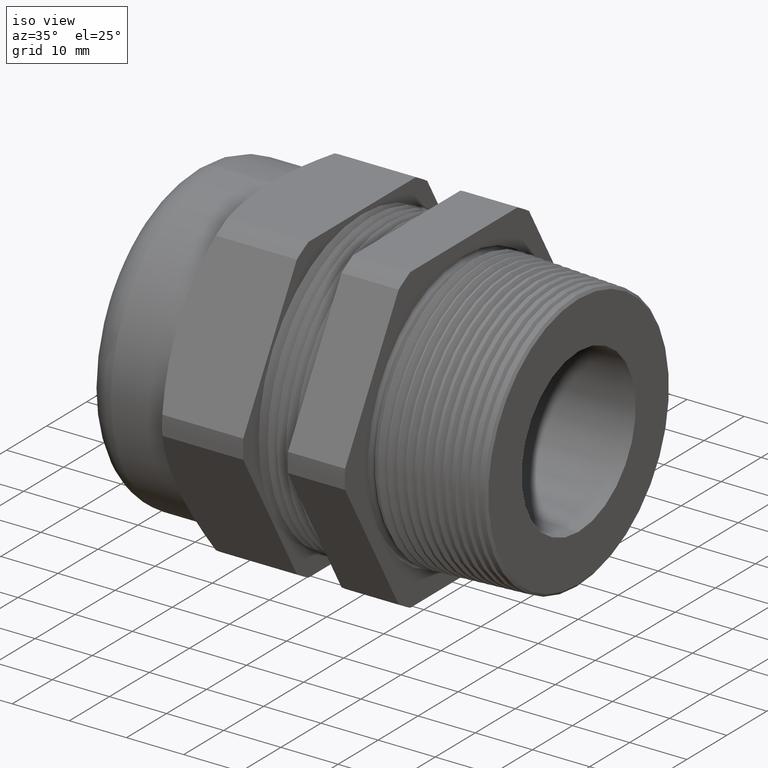
[diagram: clean part render]
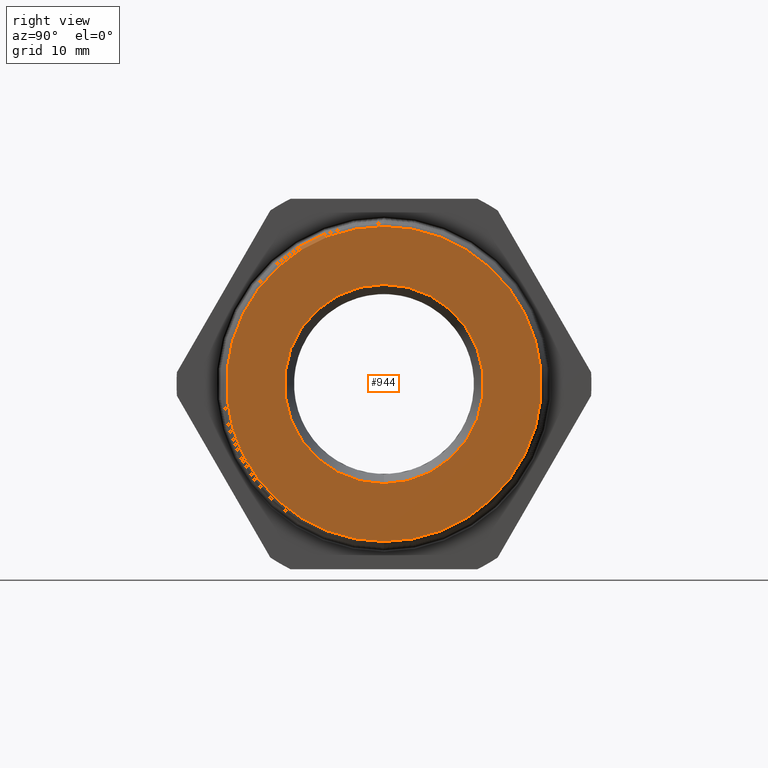
[diagram: tour spotlight — one face highlighted and labeled with its STEP entity id]
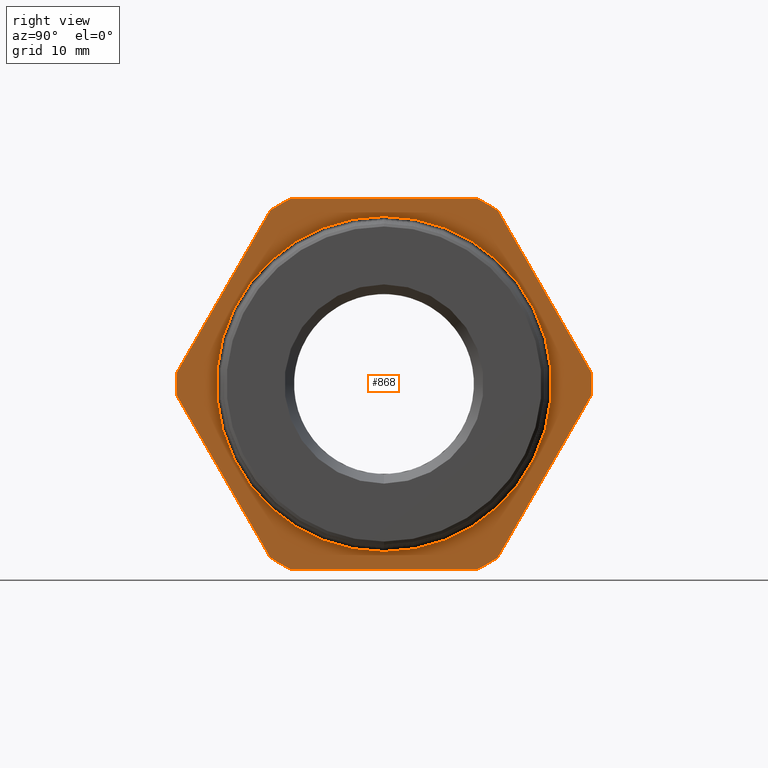
[diagram: tour spotlight — one face highlighted and labeled with its STEP entity id]
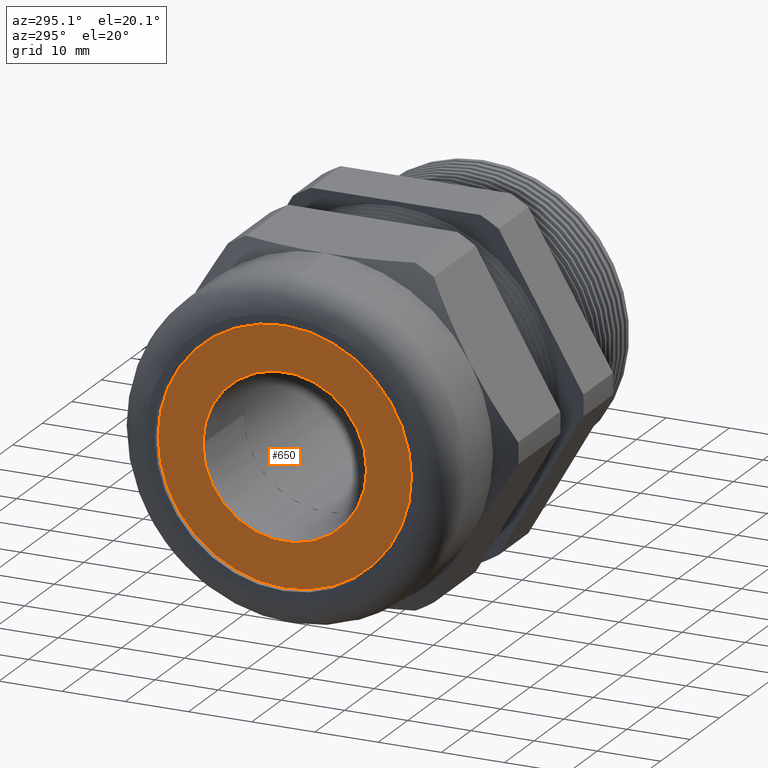
[diagram: tour spotlight — one face highlighted and labeled with its STEP entity id]
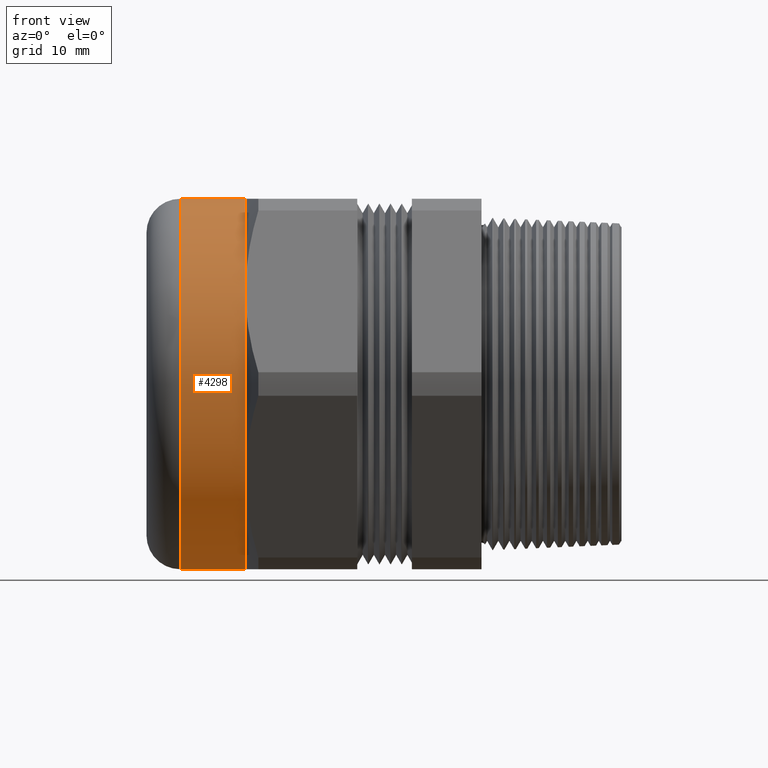
[diagram: tour spotlight — one face highlighted and labeled with its STEP entity id]
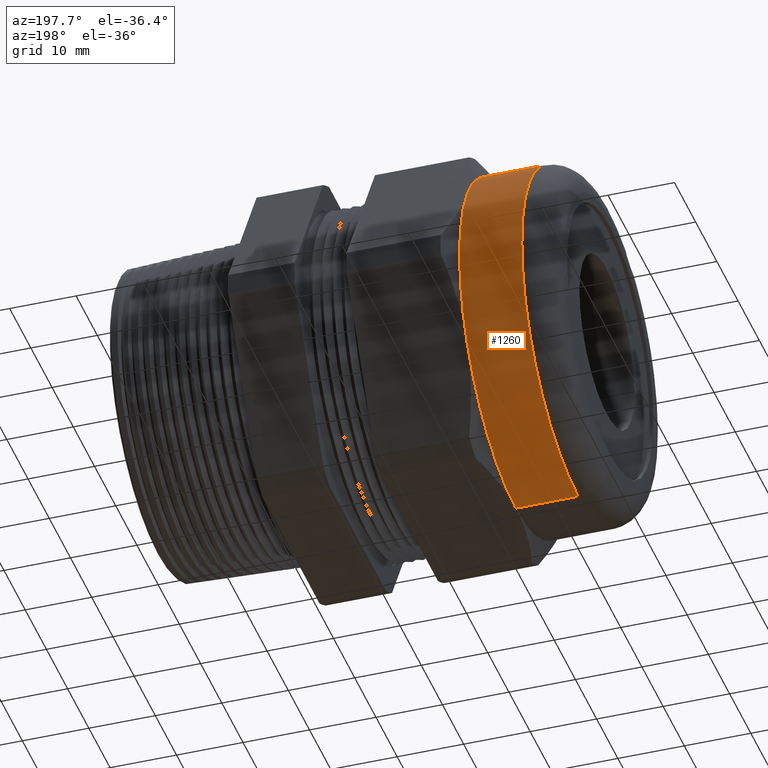
[diagram: tour spotlight — one face highlighted and labeled with its STEP entity id]
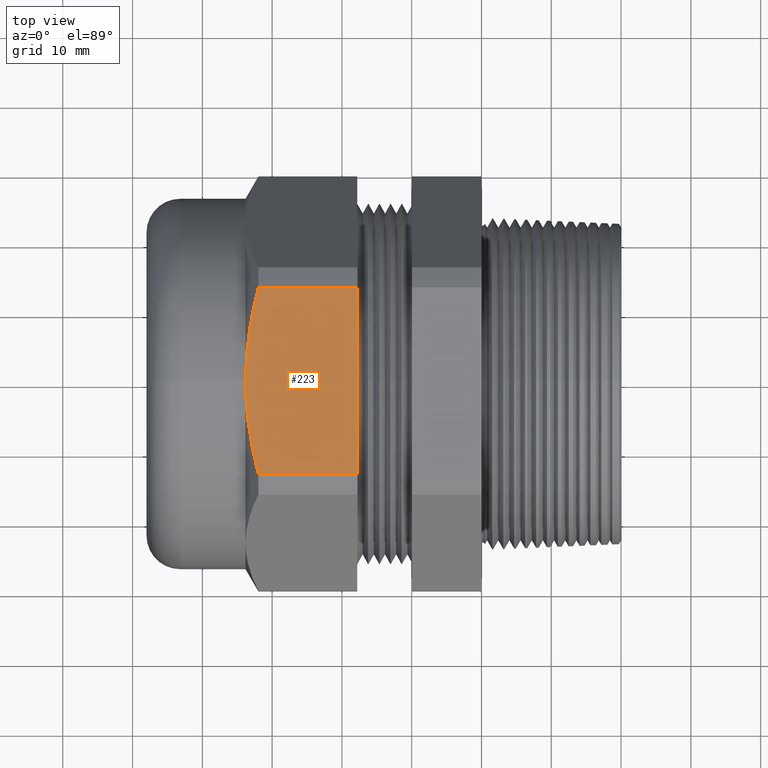
[diagram: tour spotlight — one face highlighted and labeled with its STEP entity id]
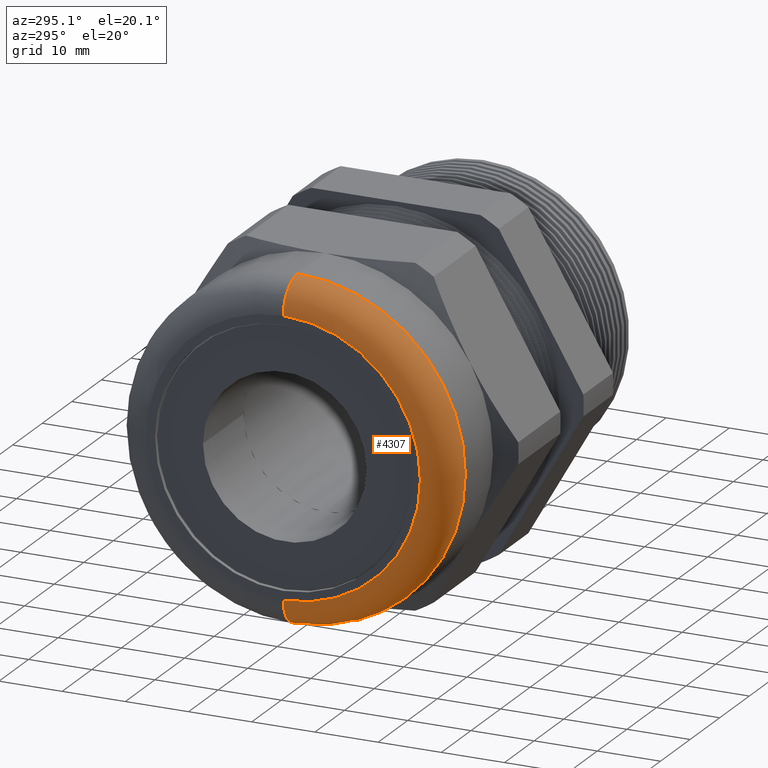
[diagram: tour spotlight — one face highlighted and labeled with its STEP entity id]
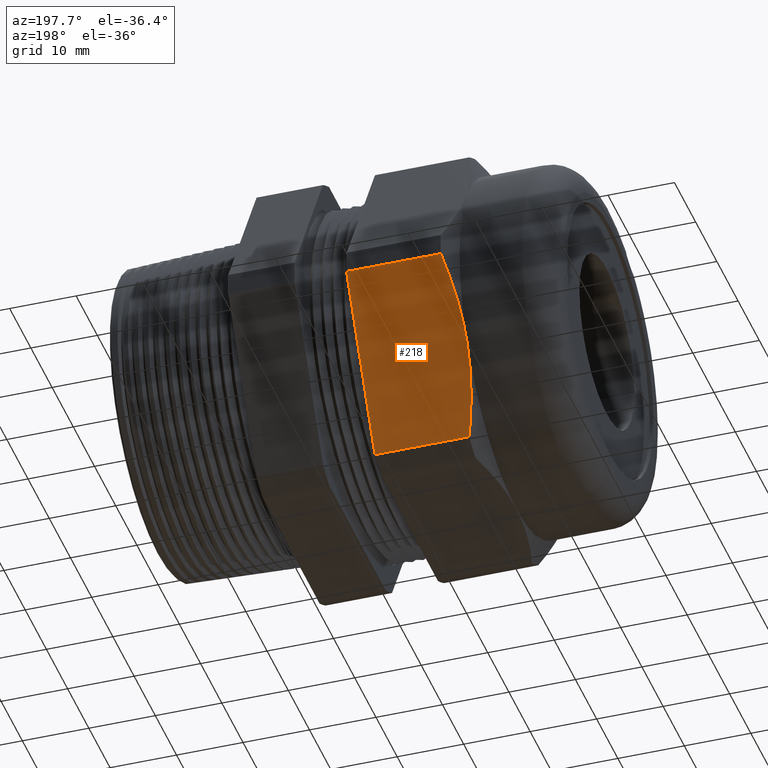
[diagram: tour spotlight — one face highlighted and labeled with its STEP entity id]
A machine part: a face-by-face anatomy tour. The part has 164 B-rep faces; the first image is the clean iso view, then the 8 largest visible faces are spotlighted one at a time (largest first), each with its STEP entity span.

Face 1 — right view, entity #944. In plain terms, the highlighted planar face has unit normal (-1, 0, 0).
Definition (entity closure, byte-faithful):
#578 = VERTEX_POINT ( 'NONE', #2382 ) ;
#580 = EDGE_CURVE ( 'NONE', #578, #581, #2381, .T. ) ;
#581 = VERTEX_POINT ( 'NONE', #2376 ) ;
#872 = EDGE_LOOP ( 'NONE', ( #873, #875 ) ) ;
#873 = ORIENTED_EDGE ( 'NONE', *, *, #874, .F. ) ;
#874 = EDGE_CURVE ( 'NONE', #581, #578, #2907, .T. ) ;
#875 = ORIENTED_EDGE ( 'NONE', *, *, #580, .F. ) ;
#944 = ADVANCED_FACE ( 'NONE', ( #3022, #3021 ), #3027, .F. ) ;
#945 = EDGE_LOOP ( 'NONE', ( #946, #947 ) ) ;
#946 = ORIENTED_EDGE ( 'NONE', *, *, #1227, .T. ) ;
#947 = ORIENTED_EDGE ( 'NONE', *, *, #948, .T. ) ;
#948 = EDGE_CURVE ( 'NONE', #1225, #1228, #3079, .T. ) ;
#1225 = VERTEX_POINT ( 'NONE', #3592 ) ;
#1227 = EDGE_CURVE ( 'NONE', #1228, #1225, #3591, .T. ) ;
#1228 = VERTEX_POINT ( 'NONE', #3586 ) ;
#2376 = CARTESIAN_POINT ( 'NONE',  ( 0.7900000000000000400, 0.0000000000000000000, -0.8886206974589371300 ) ) ;
#2377 = DIRECTION ( 'NONE',  ( 0.0000000000000000000, 0.0000000000000000000, 1.000000000000000000 ) ) ;
#2378 = DIRECTION ( 'NONE',  ( -1.000000000000000000, 0.0000000000000000000, 0.0000000000000000000 ) ) ;
#2379 = CARTESIAN_POINT ( 'NONE',  ( 0.7900000000000000400, 0.0000000000000000000, 0.0000000000000000000 ) ) ;
#2380 = AXIS2_PLACEMENT_3D ( 'NONE', #2379, #2378, #2377 ) ;
#2381 = CIRCLE ( 'NONE', #2380, 0.8886206974589371300 ) ;
#2382 = CARTESIAN_POINT ( 'NONE',  ( 0.7900000000000000400, 1.088246492799175700E-016, 0.8886206974589371300 ) ) ;
#2903 = DIRECTION ( 'NONE',  ( 0.0000000000000000000, 0.0000000000000000000, 1.000000000000000000 ) ) ;
#2904 = DIRECTION ( 'NONE',  ( -1.000000000000000000, 0.0000000000000000000, 0.0000000000000000000 ) ) ;
#2905 = CARTESIAN_POINT ( 'NONE',  ( 0.7900000000000000400, 0.0000000000000000000, 0.0000000000000000000 ) ) ;
#2906 = AXIS2_PLACEMENT_3D ( 'NONE', #2905, #2904, #2903 ) ;
#2907 = CIRCLE ( 'NONE', #2906, 0.8886206974589371300 ) ;
#3020 = AXIS2_PLACEMENT_3D ( 'NONE', #3082, #3081, #3080 ) ;
#3021 = FACE_OUTER_BOUND ( 'NONE', #872, .T. ) ;
#3022 = FACE_BOUND ( 'NONE', #945, .T. ) ;
#3027 = PLANE ( 'NONE',  #3020 ) ;
#3075 = DIRECTION ( 'NONE',  ( 0.0000000000000000000, 0.0000000000000000000, 1.000000000000000000 ) ) ;
#3076 = DIRECTION ( 'NONE',  ( -1.000000000000000000, 0.0000000000000000000, 0.0000000000000000000 ) ) ;
#3077 = CARTESIAN_POINT ( 'NONE',  ( 0.7899999999999998100, 0.0000000000000000000, 0.0000000000000000000 ) ) ;
#3078 = AXIS2_PLACEMENT_3D ( 'NONE', #3077, #3076, #3075 ) ;
#3079 = CIRCLE ( 'NONE', #3078, 0.5620755975045699200 ) ;
#3080 = DIRECTION ( 'NONE',  ( 0.0000000000000000000, 0.0000000000000000000, 1.000000000000000000 ) ) ;
#3081 = DIRECTION ( 'NONE',  ( -1.000000000000000000, 0.0000000000000000000, 0.0000000000000000000 ) ) ;
#3082 = CARTESIAN_POINT ( 'NONE',  ( 0.7900000000000000400, 0.9055078551022752700, 0.0000000000000000000 ) ) ;
#3586 = CARTESIAN_POINT ( 'NONE',  ( 0.7899999999999998100, 0.0000000000000000000, -0.5620755975045699200 ) ) ;
#3587 = DIRECTION ( 'NONE',  ( 0.0000000000000000000, 0.0000000000000000000, 1.000000000000000000 ) ) ;
#3588 = DIRECTION ( 'NONE',  ( -1.000000000000000000, 0.0000000000000000000, 0.0000000000000000000 ) ) ;
#3589 = CARTESIAN_POINT ( 'NONE',  ( 0.7899999999999998100, 0.0000000000000000000, 0.0000000000000000000 ) ) ;
#3590 = AXIS2_PLACEMENT_3D ( 'NONE', #3589, #3588, #3587 ) ;
#3591 = CIRCLE ( 'NONE', #3590, 0.5620755975045699200 ) ;
#3592 = CARTESIAN_POINT ( 'NONE',  ( 0.7899999999999998100, 6.883440813628075700E-017, 0.5620755975045699200 ) ) ;

Face 2 — right view, entity #868. In plain terms, the highlighted planar face has unit normal (-1, 0, 0).
Definition (entity closure, byte-faithful):
#568 = EDGE_CURVE ( 'NONE', #627, #569, #2341, .T. ) ;
#569 = VERTEX_POINT ( 'NONE', #2336 ) ;
#627 = VERTEX_POINT ( 'NONE', #2472 ) ;
#787 = VERTEX_POINT ( 'NONE', #2749 ) ;
#788 = VERTEX_POINT ( 'NONE', #2748 ) ;
#789 = ORIENTED_EDGE ( 'NONE', *, *, #790, .F. ) ;
#790 = EDGE_CURVE ( 'NONE', #791, #788, #2747, .T. ) ;
#791 = VERTEX_POINT ( 'NONE', #2742 ) ;
#792 = ORIENTED_EDGE ( 'NONE', *, *, #793, .T. ) ;
#793 = EDGE_CURVE ( 'NONE', #791, #845, #2740, .T. ) ;
#830 = EDGE_CURVE ( 'NONE', #907, #831, #2859, .T. ) ;
#831 = VERTEX_POINT ( 'NONE', #2855 ) ;
#833 = ORIENTED_EDGE ( 'NONE', *, *, #835, .F. ) ;
#835 = EDGE_CURVE ( 'NONE', #787, #831, #2854, .T. ) ;
#837 = EDGE_LOOP ( 'NONE', ( #840, #880 ) ) ;
#840 = ORIENTED_EDGE ( 'NONE', *, *, #879, .F. ) ;
#845 = VERTEX_POINT ( 'NONE', #2833 ) ;
#848 = ORIENTED_EDGE ( 'NONE', *, *, #849, .F. ) ;
#849 = EDGE_CURVE ( 'NONE', #850, #845, #2830, .T. ) ;
#850 = VERTEX_POINT ( 'NONE', #2886 ) ;
#851 = ORIENTED_EDGE ( 'NONE', *, *, #852, .T. ) ;
#852 = EDGE_CURVE ( 'NONE', #850, #853, #2885, .T. ) ;
#853 = VERTEX_POINT ( 'NONE', #2881 ) ;
#854 = ORIENTED_EDGE ( 'NONE', *, *, #855, .F. ) ;
#855 = EDGE_CURVE ( 'NONE', #856, #853, #2880, .T. ) ;
#856 = VERTEX_POINT ( 'NONE', #2875 ) ;
#858 = ORIENTED_EDGE ( 'NONE', *, *, #859, .T. ) ;
#859 = EDGE_CURVE ( 'NONE', #856, #861, #2872, .T. ) ;
#861 = VERTEX_POINT ( 'NONE', #2864 ) ;
#863 = ORIENTED_EDGE ( 'NONE', *, *, #864, .F. ) ;
#864 = EDGE_CURVE ( 'NONE', #898, #861, #2862, .T. ) ;
#868 = ADVANCED_FACE ( 'NONE', ( #2918, #2917 ), #2916, .F. ) ;
#869 = EDGE_LOOP ( 'NONE', ( #870, #789, #792, #848, #851, #854, #858, #863, #900, #904, #910, #833 ) ) ;
#870 = ORIENTED_EDGE ( 'NONE', *, *, #871, .T. ) ;
#871 = EDGE_CURVE ( 'NONE', #787, #788, #2911, .T. ) ;
#879 = EDGE_CURVE ( 'NONE', #569, #627, #2897, .T. ) ;
#880 = ORIENTED_EDGE ( 'NONE', *, *, #568, .F. ) ;
#898 = VERTEX_POINT ( 'NONE', #2929 ) ;
#900 = ORIENTED_EDGE ( 'NONE', *, *, #902, .T. ) ;
#902 = EDGE_CURVE ( 'NONE', #898, #903, #2986, .T. ) ;
#903 = VERTEX_POINT ( 'NONE', #2982 ) ;
#904 = ORIENTED_EDGE ( 'NONE', *, *, #906, .F. ) ;
#906 = EDGE_CURVE ( 'NONE', #907, #903, #2981, .T. ) ;
#907 = VERTEX_POINT ( 'NONE', #2976 ) ;
#910 = ORIENTED_EDGE ( 'NONE', *, *, #830, .T. ) ;
#2336 = CARTESIAN_POINT ( 'NONE',  ( -3.414809992080329000E-017, 0.0000000000000000000, -0.9449999999999997300 ) ) ;
#2337 = DIRECTION ( 'NONE',  ( 0.0000000000000000000, 0.0000000000000000000, 1.000000000000000000 ) ) ;
#2338 = DIRECTION ( 'NONE',  ( 1.000000000000000000, 0.0000000000000000000, 0.0000000000000000000 ) ) ;
#2339 = CARTESIAN_POINT ( 'NONE',  ( -3.414809992080329000E-017, 0.0000000000000000000, 0.0000000000000000000 ) ) ;
#2340 = AXIS2_PLACEMENT_3D ( 'NONE', #2339, #2338, #2337 ) ;
#2341 = CIRCLE ( 'NONE', #2340, 0.9449999999999997300 ) ;
#2472 = CARTESIAN_POINT ( 'NONE',  ( -3.414809992080329000E-017, 1.157291225194248600E-016, 0.9449999999999997300 ) ) ;
#2737 = DIRECTION ( 'NONE',  ( 0.0000000000000000000, 1.000000000000000000, 0.0000000000000000000 ) ) ;
#2738 = VECTOR ( 'NONE', #2737, 39.37007874015748100 ) ;
#2739 = CARTESIAN_POINT ( 'NONE',  ( 0.0000000000000000000, -0.5270779448999947100, -1.044999999999999300 ) ) ;
#2740 = LINE ( 'NONE', #2739, #2738 ) ;
#2742 = CARTESIAN_POINT ( 'NONE',  ( 0.0000000000000000000, -0.5270779448999944900, -1.044999999999999300 ) ) ;
#2743 = DIRECTION ( 'NONE',  ( 0.0000000000000000000, 0.0000000000000000000, 1.000000000000000000 ) ) ;
#2744 = DIRECTION ( 'NONE',  ( -1.000000000000000000, 0.0000000000000000000, 0.0000000000000000000 ) ) ;
#2745 = CARTESIAN_POINT ( 'NONE',  ( 0.0000000000000000000, 0.0000000000000000000, 0.0000000000000000000 ) ) ;
#2746 = AXIS2_PLACEMENT_3D ( 'NONE', #2745, #2744, #2743 ) ;
#2747 = CIRCLE ( 'NONE', #2746, 1.170400000000000100 ) ;
#2748 = CARTESIAN_POINT ( 'NONE',  ( 0.0000000000000000000, -0.6414575745047412800, -0.9789628900578889500 ) ) ;
#2749 = CARTESIAN_POINT ( 'NONE',  ( 0.0000000000000000000, -1.168535519404734900, -0.06603710994211120500 ) ) ;
#2830 = CIRCLE ( 'NONE', #2890, 1.170400000000000100 ) ;
#2833 = CARTESIAN_POINT ( 'NONE',  ( 0.0000000000000000000, 0.5270779448999947100, -1.044999999999999300 ) ) ;
#2850 = DIRECTION ( 'NONE',  ( 0.0000000000000000000, 0.0000000000000000000, 1.000000000000000000 ) ) ;
#2851 = DIRECTION ( 'NONE',  ( -1.000000000000000000, 0.0000000000000000000, 0.0000000000000000000 ) ) ;
#2852 = CARTESIAN_POINT ( 'NONE',  ( 0.0000000000000000000, 0.0000000000000000000, 0.0000000000000000000 ) ) ;
#2853 = AXIS2_PLACEMENT_3D ( 'NONE', #2852, #2851, #2850 ) ;
#2854 = CIRCLE ( 'NONE', #2853, 1.170400000000000100 ) ;
#2855 = CARTESIAN_POINT ( 'NONE',  ( 0.0000000000000000000, -1.168535519404735100, 0.06603710994211092800 ) ) ;
#2856 = DIRECTION ( 'NONE',  ( 0.0000000000000000000, -0.5000000000000003300, -0.8660254037844383700 ) ) ;
#2857 = VECTOR ( 'NONE', #2856, 39.37007874015748100 ) ;
#2858 = CARTESIAN_POINT ( 'NONE',  ( 0.0000000000000000000, -0.6414575745047408400, 0.9789628900578893900 ) ) ;
#2859 = LINE ( 'NONE', #2858, #2857 ) ;
#2861 = AXIS2_PLACEMENT_3D ( 'NONE', #2925, #2924, #2923 ) ;
#2862 = CIRCLE ( 'NONE', #2861, 1.170400000000000100 ) ;
#2864 = CARTESIAN_POINT ( 'NONE',  ( 0.0000000000000000000, 0.6414575745047410600, 0.9789628900578892800 ) ) ;
#2865 = DIRECTION ( 'NONE',  ( 0.0000000000000000000, -0.4999999999999998900, 0.8660254037844386000 ) ) ;
#2866 = VECTOR ( 'NONE', #2865, 39.37007874015748900 ) ;
#2867 = CARTESIAN_POINT ( 'NONE',  ( 0.0000000000000000000, 1.168535519404734900, 0.06603710994211071900 ) ) ;
#2872 = LINE ( 'NONE', #2867, #2866 ) ;
#2875 = CARTESIAN_POINT ( 'NONE',  ( 0.0000000000000000000, 1.168535519404734900, 0.06603710994211060800 ) ) ;
#2876 = DIRECTION ( 'NONE',  ( 0.0000000000000000000, 0.0000000000000000000, 1.000000000000000000 ) ) ;
#2877 = DIRECTION ( 'NONE',  ( -1.000000000000000000, 0.0000000000000000000, 0.0000000000000000000 ) ) ;
#2878 = CARTESIAN_POINT ( 'NONE',  ( 0.0000000000000000000, 0.0000000000000000000, 0.0000000000000000000 ) ) ;
#2879 = AXIS2_PLACEMENT_3D ( 'NONE', #2878, #2877, #2876 ) ;
#2880 = CIRCLE ( 'NONE', #2879, 1.170400000000000100 ) ;
#2881 = CARTESIAN_POINT ( 'NONE',  ( 0.0000000000000000000, 1.168535519404734900, -0.06603710994211037200 ) ) ;
#2882 = DIRECTION ( 'NONE',  ( 0.0000000000000000000, 0.5000000000000000000, 0.8660254037844386000 ) ) ;
#2883 = VECTOR ( 'NONE', #2882, 39.37007874015748900 ) ;
#2884 = CARTESIAN_POINT ( 'NONE',  ( 0.0000000000000000000, 0.6414575745047408400, -0.9789628900578893900 ) ) ;
#2885 = LINE ( 'NONE', #2884, #2883 ) ;
#2886 = CARTESIAN_POINT ( 'NONE',  ( 0.0000000000000000000, 0.6414575745047408400, -0.9789628900578893900 ) ) ;
#2887 = DIRECTION ( 'NONE',  ( 0.0000000000000000000, 0.0000000000000000000, 1.000000000000000000 ) ) ;
#2888 = DIRECTION ( 'NONE',  ( -1.000000000000000000, 0.0000000000000000000, 0.0000000000000000000 ) ) ;
#2889 = CARTESIAN_POINT ( 'NONE',  ( 0.0000000000000000000, 0.0000000000000000000, 0.0000000000000000000 ) ) ;
#2890 = AXIS2_PLACEMENT_3D ( 'NONE', #2889, #2888, #2887 ) ;
#2893 = DIRECTION ( 'NONE',  ( 0.0000000000000000000, 0.0000000000000000000, 1.000000000000000000 ) ) ;
#2894 = DIRECTION ( 'NONE',  ( 1.000000000000000000, 0.0000000000000000000, 0.0000000000000000000 ) ) ;
#2895 = CARTESIAN_POINT ( 'NONE',  ( -3.414809992080329000E-017, 0.0000000000000000000, 0.0000000000000000000 ) ) ;
#2896 = AXIS2_PLACEMENT_3D ( 'NONE', #2895, #2894, #2893 ) ;
#2897 = CIRCLE ( 'NONE', #2896, 0.9449999999999997300 ) ;
#2908 = DIRECTION ( 'NONE',  ( 0.0000000000000000000, 0.5000000000000001100, -0.8660254037844386000 ) ) ;
#2909 = VECTOR ( 'NONE', #2908, 39.37007874015748900 ) ;
#2910 = CARTESIAN_POINT ( 'NONE',  ( 0.0000000000000000000, -1.168535519404734900, -0.06603710994211120500 ) ) ;
#2911 = LINE ( 'NONE', #2910, #2909 ) ;
#2912 = DIRECTION ( 'NONE',  ( 0.0000000000000000000, 0.0000000000000000000, 1.000000000000000000 ) ) ;
#2913 = DIRECTION ( 'NONE',  ( -1.000000000000000000, 0.0000000000000000000, 0.0000000000000000000 ) ) ;
#2914 = CARTESIAN_POINT ( 'NONE',  ( -3.414809992080329000E-017, 1.170400000000000100, 0.0000000000000000000 ) ) ;
#2915 = AXIS2_PLACEMENT_3D ( 'NONE', #2914, #2913, #2912 ) ;
#2916 = PLANE ( 'NONE',  #2915 ) ;
#2917 = FACE_BOUND ( 'NONE', #837, .T. ) ;
#2918 = FACE_OUTER_BOUND ( 'NONE', #869, .T. ) ;
#2923 = DIRECTION ( 'NONE',  ( 0.0000000000000000000, 0.0000000000000000000, 1.000000000000000000 ) ) ;
#2924 = DIRECTION ( 'NONE',  ( -1.000000000000000000, 0.0000000000000000000, 0.0000000000000000000 ) ) ;
#2925 = CARTESIAN_POINT ( 'NONE',  ( 0.0000000000000000000, 0.0000000000000000000, 0.0000000000000000000 ) ) ;
#2929 = CARTESIAN_POINT ( 'NONE',  ( 0.0000000000000000000, 0.5270779448999933800, 1.044999999999999900 ) ) ;
#2976 = CARTESIAN_POINT ( 'NONE',  ( 0.0000000000000000000, -0.6414575745047403900, 0.9789628900578897200 ) ) ;
#2977 = DIRECTION ( 'NONE',  ( 0.0000000000000000000, 0.0000000000000000000, 1.000000000000000000 ) ) ;
#2978 = DIRECTION ( 'NONE',  ( -1.000000000000000000, 0.0000000000000000000, 0.0000000000000000000 ) ) ;
#2979 = CARTESIAN_POINT ( 'NONE',  ( 0.0000000000000000000, 0.0000000000000000000, 0.0000000000000000000 ) ) ;
#2980 = AXIS2_PLACEMENT_3D ( 'NONE', #2979, #2978, #2977 ) ;
#2981 = CIRCLE ( 'NONE', #2980, 1.170400000000000100 ) ;
#2982 = CARTESIAN_POINT ( 'NONE',  ( 0.0000000000000000000, -0.5270779448999936000, 1.044999999999999900 ) ) ;
#2983 = DIRECTION ( 'NONE',  ( 0.0000000000000000000, -1.000000000000000000, 0.0000000000000000000 ) ) ;
#2984 = VECTOR ( 'NONE', #2983, 39.37007874015748100 ) ;
#2985 = CARTESIAN_POINT ( 'NONE',  ( 0.0000000000000000000, 0.5270779448999936000, 1.044999999999999900 ) ) ;
#2986 = LINE ( 'NONE', #2985, #2984 ) ;

Face 3 — auxiliary view, entity #650. In plain terms, the highlighted planar face has unit normal (-1, -0, 0).
Definition (entity closure, byte-faithful):
#526 = EDGE_LOOP ( 'NONE', ( #621, #561 ) ) ;
#552 = ORIENTED_EDGE ( 'NONE', *, *, #668, .T. ) ;
#561 = ORIENTED_EDGE ( 'NONE', *, *, #636, .T. ) ;
#562 = ORIENTED_EDGE ( 'NONE', *, *, #628, .T. ) ;
#591 = VERTEX_POINT ( 'NONE', #2357 ) ;
#621 = ORIENTED_EDGE ( 'NONE', *, *, #647, .T. ) ;
#628 = EDGE_CURVE ( 'NONE', #666, #591, #2470, .T. ) ;
#636 = EDGE_CURVE ( 'NONE', #637, #638, #2454, .T. ) ;
#637 = VERTEX_POINT ( 'NONE', #2511 ) ;
#638 = VERTEX_POINT ( 'NONE', #2510 ) ;
#647 = EDGE_CURVE ( 'NONE', #638, #637, #2501, .T. ) ;
#650 = ADVANCED_FACE ( 'NONE', ( #2492, #2491 ), #2490, .T. ) ;
#651 = EDGE_LOOP ( 'NONE', ( #552, #562 ) ) ;
#666 = VERTEX_POINT ( 'NONE', #2523 ) ;
#668 = EDGE_CURVE ( 'NONE', #591, #666, #2521, .T. ) ;
#2357 = CARTESIAN_POINT ( 'NONE',  ( -1.869999999999999700, -0.7890000000000003700, 0.0000000000000000000 ) ) ;
#2454 = CIRCLE ( 'NONE', #2515, 0.5100000000000002300 ) ;
#2466 = DIRECTION ( 'NONE',  ( 0.0000000000000000000, -1.000000000000000000, 0.0000000000000000000 ) ) ;
#2467 = DIRECTION ( 'NONE',  ( -1.000000000000000000, -1.214306433183765200E-016, 0.0000000000000000000 ) ) ;
#2468 = CARTESIAN_POINT ( 'NONE',  ( -1.869999999999999700, -2.727897680031288100E-016, 0.0000000000000000000 ) ) ;
#2469 = AXIS2_PLACEMENT_3D ( 'NONE', #2468, #2467, #2466 ) ;
#2470 = CIRCLE ( 'NONE', #2469, 0.7890000000000001500 ) ;
#2486 = DIRECTION ( 'NONE',  ( 1.214306433183765200E-016, -1.000000000000000000, 0.0000000000000000000 ) ) ;
#2487 = DIRECTION ( 'NONE',  ( -1.000000000000000000, -1.214306433183765200E-016, 0.0000000000000000000 ) ) ;
#2488 = CARTESIAN_POINT ( 'NONE',  ( -1.869999999999999700, 0.7989999999999998200, 0.0000000000000000000 ) ) ;
#2489 = AXIS2_PLACEMENT_3D ( 'NONE', #2488, #2487, #2486 ) ;
#2490 = PLANE ( 'NONE',  #2489 ) ;
#2491 = FACE_BOUND ( 'NONE', #526, .T. ) ;
#2492 = FACE_OUTER_BOUND ( 'NONE', #651, .T. ) ;
#2493 = DIRECTION ( 'NONE',  ( 0.0000000000000000000, 1.000000000000000000, 0.0000000000000000000 ) ) ;
#2494 = DIRECTION ( 'NONE',  ( 1.000000000000000000, 1.214306433183765200E-016, 0.0000000000000000000 ) ) ;
#2495 = CARTESIAN_POINT ( 'NONE',  ( -1.869999999999999700, -2.727897680031288600E-016, 0.0000000000000000000 ) ) ;
#2496 = AXIS2_PLACEMENT_3D ( 'NONE', #2495, #2494, #2493 ) ;
#2501 = CIRCLE ( 'NONE', #2496, 0.5100000000000002300 ) ;
#2510 = CARTESIAN_POINT ( 'NONE',  ( -1.869999999999999700, 0.5100000000000000100, 0.0000000000000000000 ) ) ;
#2511 = CARTESIAN_POINT ( 'NONE',  ( -1.869999999999999700, -0.5100000000000005600, 6.245698675651506000E-017 ) ) ;
#2512 = DIRECTION ( 'NONE',  ( 0.0000000000000000000, 1.000000000000000000, 0.0000000000000000000 ) ) ;
#2513 = DIRECTION ( 'NONE',  ( 1.000000000000000000, 1.214306433183765200E-016, 0.0000000000000000000 ) ) ;
#2514 = CARTESIAN_POINT ( 'NONE',  ( -1.869999999999999700, -2.727897680031288600E-016, 0.0000000000000000000 ) ) ;
#2515 = AXIS2_PLACEMENT_3D ( 'NONE', #2514, #2513, #2512 ) ;
#2517 = DIRECTION ( 'NONE',  ( 0.0000000000000000000, -1.000000000000000000, 0.0000000000000000000 ) ) ;
#2518 = DIRECTION ( 'NONE',  ( -1.000000000000000000, -1.214306433183765200E-016, 0.0000000000000000000 ) ) ;
#2519 = CARTESIAN_POINT ( 'NONE',  ( -1.869999999999999700, -2.727897680031288100E-016, 0.0000000000000000000 ) ) ;
#2520 = AXIS2_PLACEMENT_3D ( 'NONE', #2519, #2518, #2517 ) ;
#2521 = CIRCLE ( 'NONE', #2520, 0.7890000000000001500 ) ;
#2523 = CARTESIAN_POINT ( 'NONE',  ( -1.869999999999999700, 0.7889999999999998100, 9.723695585229986400E-017 ) ) ;

Face 4 — front view, entity #4298. In plain terms, the highlighted cylindrical surface (partial cylindrical patch) has radius 26.543 mm, axis along (-1, 0, 0).
Definition (entity closure, byte-faithful):
#244 = VERTEX_POINT ( 'NONE', #1820 ) ;
#272 = VERTEX_POINT ( 'NONE', #1934 ) ;
#1195 = VERTEX_POINT ( 'NONE', #3585 ) ;
#1198 = VERTEX_POINT ( 'NONE', #3579 ) ;
#1265 = VERTEX_POINT ( 'NONE', #3708 ) ;
#1267 = EDGE_CURVE ( 'NONE', #1265, #1198, #3707, .T. ) ;
#1270 = EDGE_CURVE ( 'NONE', #1271, #1195, #3703, .T. ) ;
#1271 = VERTEX_POINT ( 'NONE', #3699 ) ;
#1820 = CARTESIAN_POINT ( 'NONE',  ( -1.331250000000000300, -0.9049965469547379700, 0.5225000000000001900 ) ) ;
#1934 = CARTESIAN_POINT ( 'NONE',  ( -1.331250000000000300, -0.9049965469547378600, -0.5225000000000003000 ) ) ;
#3579 = CARTESIAN_POINT ( 'NONE',  ( -1.699599999999999600, 1.279755905108983600E-016, -1.044999999999999700 ) ) ;
#3585 = CARTESIAN_POINT ( 'NONE',  ( -1.699599999999999600, 0.0000000000000000000, 1.044999999999999700 ) ) ;
#3699 = CARTESIAN_POINT ( 'NONE',  ( -1.331250000000000300, 0.0000000000000000000, 1.044999999999999700 ) ) ;
#3700 = DIRECTION ( 'NONE',  ( -1.000000000000000000, 0.0000000000000000000, 0.0000000000000000000 ) ) ;
#3701 = VECTOR ( 'NONE', #3700, 39.37007874015748100 ) ;
#3702 = CARTESIAN_POINT ( 'NONE',  ( -0.7238591030180623300, 0.0000000000000000000, 1.044999999999999700 ) ) ;
#3703 = LINE ( 'NONE', #3702, #3701 ) ;
#3704 = DIRECTION ( 'NONE',  ( -1.000000000000000000, 0.0000000000000000000, 0.0000000000000000000 ) ) ;
#3705 = VECTOR ( 'NONE', #3704, 39.37007874015748100 ) ;
#3706 = CARTESIAN_POINT ( 'NONE',  ( -0.7238591030180623300, 1.279755905108983600E-016, -1.044999999999999700 ) ) ;
#3707 = LINE ( 'NONE', #3706, #3705 ) ;
#3708 = CARTESIAN_POINT ( 'NONE',  ( -1.331250000000000300, 0.0000000000000000000, -1.044999999999999700 ) ) ;
#3888 = DIRECTION ( 'NONE',  ( 0.0000000000000000000, 0.0000000000000000000, -1.000000000000000000 ) ) ;
#3889 = DIRECTION ( 'NONE',  ( 1.000000000000000000, 0.0000000000000000000, 0.0000000000000000000 ) ) ;
#3890 = AXIS2_PLACEMENT_3D ( 'NONE', #3895, #3889, #3888 ) ;
#3891 = CIRCLE ( 'NONE', #3890, 1.044999999999999700 ) ;
#3895 = CARTESIAN_POINT ( 'NONE',  ( -1.699599999999999600, 0.0000000000000000000, 0.0000000000000000000 ) ) ;
#3912 = DIRECTION ( 'NONE',  ( 0.0000000000000000000, 0.0000000000000000000, 1.000000000000000000 ) ) ;
#3913 = DIRECTION ( 'NONE',  ( -1.000000000000000000, 0.0000000000000000000, 0.0000000000000000000 ) ) ;
#3914 = CARTESIAN_POINT ( 'NONE',  ( -0.7238591030180623300, 0.0000000000000000000, 0.0000000000000000000 ) ) ;
#3915 = AXIS2_PLACEMENT_3D ( 'NONE', #3914, #3913, #3912 ) ;
#3917 = CYLINDRICAL_SURFACE ( 'NONE', #3915, 1.044999999999999700 ) ;
#3918 = FACE_OUTER_BOUND ( 'NONE', #4300, .T. ) ;
#3919 = DIRECTION ( 'NONE',  ( 0.0000000000000000000, 0.0000000000000000000, 1.000000000000000000 ) ) ;
#3920 = DIRECTION ( 'NONE',  ( -1.000000000000000000, 0.0000000000000000000, 0.0000000000000000000 ) ) ;
#3921 = CARTESIAN_POINT ( 'NONE',  ( -1.331250000000000300, 0.0000000000000000000, 0.0000000000000000000 ) ) ;
#3922 = AXIS2_PLACEMENT_3D ( 'NONE', #3921, #3920, #3919 ) ;
#3923 = CIRCLE ( 'NONE', #3922, 1.044999999999999700 ) ;
#3924 = DIRECTION ( 'NONE',  ( 0.0000000000000000000, 0.0000000000000000000, 1.000000000000000000 ) ) ;
#3925 = DIRECTION ( 'NONE',  ( -1.000000000000000000, 0.0000000000000000000, 0.0000000000000000000 ) ) ;
#3926 = CARTESIAN_POINT ( 'NONE',  ( -1.331250000000000300, 0.0000000000000000000, 0.0000000000000000000 ) ) ;
#3927 = AXIS2_PLACEMENT_3D ( 'NONE', #3926, #3925, #3924 ) ;
#3928 = CIRCLE ( 'NONE', #3927, 1.044999999999999700 ) ;
#3929 = DIRECTION ( 'NONE',  ( 0.0000000000000000000, 0.0000000000000000000, 1.000000000000000000 ) ) ;
#3930 = DIRECTION ( 'NONE',  ( -1.000000000000000000, 0.0000000000000000000, 0.0000000000000000000 ) ) ;
#3931 = CARTESIAN_POINT ( 'NONE',  ( -1.331250000000000300, 0.0000000000000000000, 0.0000000000000000000 ) ) ;
#3932 = AXIS2_PLACEMENT_3D ( 'NONE', #3931, #3930, #3929 ) ;
#3935 = CIRCLE ( 'NONE', #3932, 1.044999999999999700 ) ;
#4273 = ORIENTED_EDGE ( 'NONE', *, *, #4274, .T. ) ;
#4274 = EDGE_CURVE ( 'NONE', #1195, #1198, #3891, .T. ) ;
#4278 = ORIENTED_EDGE ( 'NONE', *, *, #1270, .T. ) ;
#4287 = EDGE_CURVE ( 'NONE', #244, #1271, #3935, .T. ) ;
#4288 = ORIENTED_EDGE ( 'NONE', *, *, #4287, .T. ) ;
#4290 = ORIENTED_EDGE ( 'NONE', *, *, #1267, .F. ) ;
#4292 = ORIENTED_EDGE ( 'NONE', *, *, #4297, .T. ) ;
#4295 = ORIENTED_EDGE ( 'NONE', *, *, #4296, .T. ) ;
#4296 = EDGE_CURVE ( 'NONE', #1265, #272, #3928, .T. ) ;
#4297 = EDGE_CURVE ( 'NONE', #272, #244, #3923, .T. ) ;
#4298 = ADVANCED_FACE ( 'NONE', ( #3918 ), #3917, .T. ) ;
#4300 = EDGE_LOOP ( 'NONE', ( #4290, #4295, #4292, #4288, #4278, #4273 ) ) ;

Face 5 — auxiliary view, entity #1260. In plain terms, the highlighted cylindrical surface (partial cylindrical patch) has radius 26.543 mm, axis along (-1, 0, 0).
Definition (entity closure, byte-faithful):
#1195 = VERTEX_POINT ( 'NONE', #3585 ) ;
#1197 = EDGE_CURVE ( 'NONE', #1198, #1195, #3584, .T. ) ;
#1198 = VERTEX_POINT ( 'NONE', #3579 ) ;
#1199 = ORIENTED_EDGE ( 'NONE', *, *, #1200, .T. ) ;
#1200 = EDGE_CURVE ( 'NONE', #1271, #1201, #3578, .T. ) ;
#1201 = VERTEX_POINT ( 'NONE', #3573 ) ;
#1202 = ORIENTED_EDGE ( 'NONE', *, *, #1203, .T. ) ;
#1203 = EDGE_CURVE ( 'NONE', #1201, #1264, #3572, .T. ) ;
#1260 = ADVANCED_FACE ( 'NONE', ( #3662 ), #3655, .T. ) ;
#1261 = EDGE_LOOP ( 'NONE', ( #1262, #1266, #1268, #1269, #1199, #1202 ) ) ;
#1262 = ORIENTED_EDGE ( 'NONE', *, *, #1263, .T. ) ;
#1263 = EDGE_CURVE ( 'NONE', #1264, #1265, #3651, .T. ) ;
#1264 = VERTEX_POINT ( 'NONE', #3713 ) ;
#1265 = VERTEX_POINT ( 'NONE', #3708 ) ;
#1266 = ORIENTED_EDGE ( 'NONE', *, *, #1267, .T. ) ;
#1267 = EDGE_CURVE ( 'NONE', #1265, #1198, #3707, .T. ) ;
#1268 = ORIENTED_EDGE ( 'NONE', *, *, #1197, .T. ) ;
#1269 = ORIENTED_EDGE ( 'NONE', *, *, #1270, .F. ) ;
#1270 = EDGE_CURVE ( 'NONE', #1271, #1195, #3703, .T. ) ;
#1271 = VERTEX_POINT ( 'NONE', #3699 ) ;
#3568 = DIRECTION ( 'NONE',  ( 0.0000000000000000000, 0.0000000000000000000, 1.000000000000000000 ) ) ;
#3569 = DIRECTION ( 'NONE',  ( -1.000000000000000000, 0.0000000000000000000, 0.0000000000000000000 ) ) ;
#3570 = CARTESIAN_POINT ( 'NONE',  ( -1.331250000000000300, 0.0000000000000000000, 0.0000000000000000000 ) ) ;
#3571 = AXIS2_PLACEMENT_3D ( 'NONE', #3570, #3569, #3568 ) ;
#3572 = CIRCLE ( 'NONE', #3571, 1.044999999999999700 ) ;
#3573 = CARTESIAN_POINT ( 'NONE',  ( -1.331250000000000300, 0.9049965469547379700, 0.5224999999999999600 ) ) ;
#3574 = DIRECTION ( 'NONE',  ( 0.0000000000000000000, 0.0000000000000000000, 1.000000000000000000 ) ) ;
#3575 = DIRECTION ( 'NONE',  ( -1.000000000000000000, 0.0000000000000000000, 0.0000000000000000000 ) ) ;
#3576 = CARTESIAN_POINT ( 'NONE',  ( -1.331250000000000300, 0.0000000000000000000, 0.0000000000000000000 ) ) ;
#3577 = AXIS2_PLACEMENT_3D ( 'NONE', #3576, #3575, #3574 ) ;
#3578 = CIRCLE ( 'NONE', #3577, 1.044999999999999700 ) ;
#3579 = CARTESIAN_POINT ( 'NONE',  ( -1.699599999999999600, 1.279755905108983600E-016, -1.044999999999999700 ) ) ;
#3580 = DIRECTION ( 'NONE',  ( 0.0000000000000000000, 0.0000000000000000000, -1.000000000000000000 ) ) ;
#3581 = DIRECTION ( 'NONE',  ( 1.000000000000000000, 0.0000000000000000000, 0.0000000000000000000 ) ) ;
#3582 = CARTESIAN_POINT ( 'NONE',  ( -1.699599999999999600, 0.0000000000000000000, 0.0000000000000000000 ) ) ;
#3583 = AXIS2_PLACEMENT_3D ( 'NONE', #3582, #3581, #3580 ) ;
#3584 = CIRCLE ( 'NONE', #3583, 1.044999999999999700 ) ;
#3585 = CARTESIAN_POINT ( 'NONE',  ( -1.699599999999999600, 0.0000000000000000000, 1.044999999999999700 ) ) ;
#3651 = CIRCLE ( 'NONE', #3712, 1.044999999999999700 ) ;
#3652 = DIRECTION ( 'NONE',  ( 0.0000000000000000000, 0.0000000000000000000, 1.000000000000000000 ) ) ;
#3653 = DIRECTION ( 'NONE',  ( -1.000000000000000000, 0.0000000000000000000, 0.0000000000000000000 ) ) ;
#3654 = AXIS2_PLACEMENT_3D ( 'NONE', #3656, #3653, #3652 ) ;
#3655 = CYLINDRICAL_SURFACE ( 'NONE', #3654, 1.044999999999999700 ) ;
#3656 = CARTESIAN_POINT ( 'NONE',  ( -0.7238591030180623300, 0.0000000000000000000, 0.0000000000000000000 ) ) ;
#3662 = FACE_OUTER_BOUND ( 'NONE', #1261, .T. ) ;
#3699 = CARTESIAN_POINT ( 'NONE',  ( -1.331250000000000300, 0.0000000000000000000, 1.044999999999999700 ) ) ;
#3700 = DIRECTION ( 'NONE',  ( -1.000000000000000000, 0.0000000000000000000, 0.0000000000000000000 ) ) ;
#3701 = VECTOR ( 'NONE', #3700, 39.37007874015748100 ) ;
#3702 = CARTESIAN_POINT ( 'NONE',  ( -0.7238591030180623300, 0.0000000000000000000, 1.044999999999999700 ) ) ;
#3703 = LINE ( 'NONE', #3702, #3701 ) ;
#3704 = DIRECTION ( 'NONE',  ( -1.000000000000000000, 0.0000000000000000000, 0.0000000000000000000 ) ) ;
#3705 = VECTOR ( 'NONE', #3704, 39.37007874015748100 ) ;
#3706 = CARTESIAN_POINT ( 'NONE',  ( -0.7238591030180623300, 1.279755905108983600E-016, -1.044999999999999700 ) ) ;
#3707 = LINE ( 'NONE', #3706, #3705 ) ;
#3708 = CARTESIAN_POINT ( 'NONE',  ( -1.331250000000000300, 0.0000000000000000000, -1.044999999999999700 ) ) ;
#3709 = DIRECTION ( 'NONE',  ( 0.0000000000000000000, 0.0000000000000000000, 1.000000000000000000 ) ) ;
#3710 = DIRECTION ( 'NONE',  ( -1.000000000000000000, 0.0000000000000000000, 0.0000000000000000000 ) ) ;
#3711 = CARTESIAN_POINT ( 'NONE',  ( -1.331250000000000300, 0.0000000000000000000, 0.0000000000000000000 ) ) ;
#3712 = AXIS2_PLACEMENT_3D ( 'NONE', #3711, #3710, #3709 ) ;
#3713 = CARTESIAN_POINT ( 'NONE',  ( -1.331250000000000300, 0.9049965469547383000, -0.5224999999999995200 ) ) ;

Face 6 — top view, entity #223. In plain terms, the highlighted planar face has unit normal (0, 0, 1).
Definition (entity closure, byte-faithful):
#164 = EDGE_CURVE ( 'NONE', #191, #194, #1641, .T. ) ;
#175 = VERTEX_POINT ( 'NONE', #1733 ) ;
#191 = VERTEX_POINT ( 'NONE', #1761 ) ;
#194 = VERTEX_POINT ( 'NONE', #1759 ) ;
#223 = ADVANCED_FACE ( 'NONE', ( #1807 ), #1806, .T. ) ;
#224 = EDGE_LOOP ( 'NONE', ( #225, #226, #228, #230, #231 ) ) ;
#225 = ORIENTED_EDGE ( 'NONE', *, *, #164, .F. ) ;
#226 = ORIENTED_EDGE ( 'NONE', *, *, #227, .T. ) ;
#227 = EDGE_CURVE ( 'NONE', #191, #1271, #1801, .T. ) ;
#228 = ORIENTED_EDGE ( 'NONE', *, *, #229, .T. ) ;
#229 = EDGE_CURVE ( 'NONE', #1271, #175, #1800, .T. ) ;
#230 = ORIENTED_EDGE ( 'NONE', *, *, #238, .T. ) ;
#231 = ORIENTED_EDGE ( 'NONE', *, *, #232, .T. ) ;
#232 = EDGE_CURVE ( 'NONE', #236, #194, #1841, .T. ) ;
#236 = VERTEX_POINT ( 'NONE', #1832 ) ;
#238 = EDGE_CURVE ( 'NONE', #175, #236, #1831, .T. ) ;
#1271 = VERTEX_POINT ( 'NONE', #3699 ) ;
#1641 = LINE ( 'NONE', #1703, #1702 ) ;
#1701 = DIRECTION ( 'NONE',  ( 1.000000000000000000, 0.0000000000000000000, 0.0000000000000000000 ) ) ;
#1702 = VECTOR ( 'NONE', #1701, 39.37007874015748100 ) ;
#1703 = CARTESIAN_POINT ( 'NONE',  ( -4.674745017870971100, 0.5270779448999933800, 1.044999999999999900 ) ) ;
#1733 = CARTESIAN_POINT ( 'NONE',  ( -1.258850276243621300, -0.5270779448999936000, 1.044999999999999900 ) ) ;
#1759 = CARTESIAN_POINT ( 'NONE',  ( -0.7012499999999994800, 0.5270779448999933800, 1.044999999999999900 ) ) ;
#1761 = CARTESIAN_POINT ( 'NONE',  ( -1.258850276243621300, 0.5270779448999933800, 1.044999999999999900 ) ) ;
#1792 = CARTESIAN_POINT ( 'NONE',  ( -1.331250000000000300, 0.0000000000000000000, 1.044999999999999700 ) ) ;
#1793 = CARTESIAN_POINT ( 'NONE',  ( -1.331249999999999800, 0.04432867443492024400, 1.044999999999999900 ) ) ;
#1794 = CARTESIAN_POINT ( 'NONE',  ( -1.329614946750623700, 0.08875526896758843800, 1.045000000000000200 ) ) ;
#1795 = CARTESIAN_POINT ( 'NONE',  ( -1.323110673426924500, 0.1778021458726036500, 1.044999999999999900 ) ) ;
#1796 = CARTESIAN_POINT ( 'NONE',  ( -1.318219713724045200, 0.2225025235046432500, 1.044999999999999900 ) ) ;
#1797 = CARTESIAN_POINT ( 'NONE',  ( -1.299321810790595100, 0.3548972216122459100, 1.044999999999999700 ) ) ;
#1798 = CARTESIAN_POINT ( 'NONE',  ( -1.281086157676562400, 0.4415566149212912200, 1.044999999999999700 ) ) ;
#1799 = CARTESIAN_POINT ( 'NONE',  ( -1.258850276243621300, 0.5270779448999933800, 1.044999999999999900 ) ) ;
#1800 = B_SPLINE_CURVE_WITH_KNOTS ( 'NONE', 3,
 ( #1849, #1848, #1847, #1846, #1845, #1844, #1843, #1842 ),
 .UNSPECIFIED., .F., .F.,
 ( 4, 2, 2, 4 ),
 ( 0.02800818699697763000, 0.03474259711465869200, 0.03810980217349922000, 0.04147700723233974800 ),
 .UNSPECIFIED. ) ;
#1801 = B_SPLINE_CURVE_WITH_KNOTS ( 'NONE', 3,
 ( #1799, #1798, #1797, #1796, #1795, #1794, #1793, #1792 ),
 .UNSPECIFIED., .F., .F.,
 ( 4, 2, 2, 4 ),
 ( 0.01454489781690409900, 0.02127654240694086500, 0.02464236470195924800, 0.02800818699697763000 ),
 .UNSPECIFIED. ) ;
#1802 = DIRECTION ( 'NONE',  ( 1.000000000000000000, 0.0000000000000000000, 0.0000000000000000000 ) ) ;
#1803 = DIRECTION ( 'NONE',  ( 0.0000000000000000000, 0.0000000000000000000, 1.000000000000000000 ) ) ;
#1804 = CARTESIAN_POINT ( 'NONE',  ( -4.674745017870971100, 0.5270779448999936000, 1.044999999999999900 ) ) ;
#1805 = AXIS2_PLACEMENT_3D ( 'NONE', #1804, #1803, #1802 ) ;
#1806 = PLANE ( 'NONE',  #1805 ) ;
#1807 = FACE_OUTER_BOUND ( 'NONE', #224, .T. ) ;
#1828 = DIRECTION ( 'NONE',  ( 1.000000000000000000, 0.0000000000000000000, 0.0000000000000000000 ) ) ;
#1829 = VECTOR ( 'NONE', #1828, 39.37007874015748100 ) ;
#1830 = CARTESIAN_POINT ( 'NONE',  ( -4.674745017870971100, -0.5270779448999936000, 1.044999999999999900 ) ) ;
#1831 = LINE ( 'NONE', #1830, #1829 ) ;
#1832 = CARTESIAN_POINT ( 'NONE',  ( -0.7012499999999994800, -0.5270779448999936000, 1.044999999999999900 ) ) ;
#1838 = DIRECTION ( 'NONE',  ( 0.0000000000000000000, 1.000000000000000000, 0.0000000000000000000 ) ) ;
#1839 = VECTOR ( 'NONE', #1838, 39.37007874015748100 ) ;
#1840 = CARTESIAN_POINT ( 'NONE',  ( -0.7012500000000000400, 1.017600000000000100, 1.044999999999999900 ) ) ;
#1841 = LINE ( 'NONE', #1840, #1839 ) ;
#1842 = CARTESIAN_POINT ( 'NONE',  ( -1.258850276243621300, -0.5270779448999936000, 1.044999999999999900 ) ) ;
#1843 = CARTESIAN_POINT ( 'NONE',  ( -1.270055288644957000, -0.4839823938700051300, 1.044999999999999700 ) ) ;
#1844 = CARTESIAN_POINT ( 'NONE',  ( -1.280283911005816000, -0.4404165995760359100, 1.044999999999999700 ) ) ;
#1845 = CARTESIAN_POINT ( 'NONE',  ( -1.298233726685762600, -0.3527978069311170600, 1.044999999999999700 ) ) ;
#1846 = CARTESIAN_POINT ( 'NONE',  ( -1.305922569491085000, -0.3089113907232494700, 1.044999999999999700 ) ) ;
#1847 = CARTESIAN_POINT ( 'NONE',  ( -1.324640157312201100, -0.1769916926688349400, 1.044999999999999900 ) ) ;
#1848 = CARTESIAN_POINT ( 'NONE',  ( -1.331250000000000300, -0.08869377152197151200, 1.044999999999999900 ) ) ;
#1849 = CARTESIAN_POINT ( 'NONE',  ( -1.331250000000000300, 0.0000000000000000000, 1.044999999999999700 ) ) ;
#3699 = CARTESIAN_POINT ( 'NONE',  ( -1.331250000000000300, 0.0000000000000000000, 1.044999999999999700 ) ) ;

Face 7 — auxiliary view, entity #4307. In plain terms, the highlighted toroidal blend (fillet) surface has major radius 21.7068 mm and minor (blend) radius 4.8362 mm.
Definition (entity closure, byte-faithful):
#1195 = VERTEX_POINT ( 'NONE', #3585 ) ;
#1198 = VERTEX_POINT ( 'NONE', #3579 ) ;
#1259 = EDGE_CURVE ( 'NONE', #1278, #1198, #3661, .T. ) ;
#1277 = VERTEX_POINT ( 'NONE', #3683 ) ;
#1278 = VERTEX_POINT ( 'NONE', #3682 ) ;
#1280 = EDGE_CURVE ( 'NONE', #1277, #1195, #3681, .T. ) ;
#3579 = CARTESIAN_POINT ( 'NONE',  ( -1.699599999999999600, 1.279755905108983600E-016, -1.044999999999999700 ) ) ;
#3585 = CARTESIAN_POINT ( 'NONE',  ( -1.699599999999999600, 0.0000000000000000000, 1.044999999999999700 ) ) ;
#3657 = DIRECTION ( 'NONE',  ( 0.0000000000000000000, 0.0000000000000000000, -1.000000000000000000 ) ) ;
#3658 = DIRECTION ( 'NONE',  ( 0.0000000000000000000, -1.000000000000000000, 0.0000000000000000000 ) ) ;
#3659 = CARTESIAN_POINT ( 'NONE',  ( -1.699599999999999600, 0.0000000000000000000, -0.8545999999999995800 ) ) ;
#3660 = AXIS2_PLACEMENT_3D ( 'NONE', #3659, #3658, #3657 ) ;
#3661 = CIRCLE ( 'NONE', #3660, 0.1904000000000001000 ) ;
#3681 = CIRCLE ( 'NONE', #3744, 0.1904000000000001000 ) ;
#3682 = CARTESIAN_POINT ( 'NONE',  ( -1.889999999999999700, 0.0000000000000000000, -0.8545999999999995800 ) ) ;
#3683 = CARTESIAN_POINT ( 'NONE',  ( -1.889999999999999700, 1.163169529830155800E-016, 0.8545999999999995800 ) ) ;
#3741 = DIRECTION ( 'NONE',  ( 0.0000000000000000000, 1.224646799147353500E-016, 1.000000000000000000 ) ) ;
#3742 = DIRECTION ( 'NONE',  ( 0.0000000000000000000, 1.000000000000000000, -1.224646799147353200E-016 ) ) ;
#3743 = CARTESIAN_POINT ( 'NONE',  ( -1.699599999999999600, 1.046583154551327500E-016, 0.8545999999999995800 ) ) ;
#3744 = AXIS2_PLACEMENT_3D ( 'NONE', #3743, #3742, #3741 ) ;
#3888 = DIRECTION ( 'NONE',  ( 0.0000000000000000000, 0.0000000000000000000, -1.000000000000000000 ) ) ;
#3889 = DIRECTION ( 'NONE',  ( 1.000000000000000000, 0.0000000000000000000, 0.0000000000000000000 ) ) ;
#3890 = AXIS2_PLACEMENT_3D ( 'NONE', #3895, #3889, #3888 ) ;
#3891 = CIRCLE ( 'NONE', #3890, 1.044999999999999700 ) ;
#3895 = CARTESIAN_POINT ( 'NONE',  ( -1.699599999999999600, 0.0000000000000000000, 0.0000000000000000000 ) ) ;
#3904 = TOROIDAL_SURFACE ( 'NONE', #3968, 0.8545999999999995800, 0.1904000000000001500 ) ;
#3905 = FACE_OUTER_BOUND ( 'NONE', #4311, .T. ) ;
#3910 = CARTESIAN_POINT ( 'NONE',  ( -1.699599999999999600, 0.0000000000000000000, 0.0000000000000000000 ) ) ;
#3966 = DIRECTION ( 'NONE',  ( 0.0000000000000000000, 0.0000000000000000000, -1.000000000000000000 ) ) ;
#3967 = DIRECTION ( 'NONE',  ( 1.000000000000000000, 0.0000000000000000000, 0.0000000000000000000 ) ) ;
#3968 = AXIS2_PLACEMENT_3D ( 'NONE', #3910, #3967, #3966 ) ;
#4015 = DIRECTION ( 'NONE',  ( 0.0000000000000000000, 0.0000000000000000000, -1.000000000000000000 ) ) ;
#4016 = DIRECTION ( 'NONE',  ( -1.000000000000000000, 0.0000000000000000000, 0.0000000000000000000 ) ) ;
#4017 = CARTESIAN_POINT ( 'NONE',  ( -1.889999999999999700, 0.0000000000000000000, 0.0000000000000000000 ) ) ;
#4018 = AXIS2_PLACEMENT_3D ( 'NONE', #4017, #4016, #4015 ) ;
#4019 = CIRCLE ( 'NONE', #4018, 0.8545999999999995800 ) ;
#4274 = EDGE_CURVE ( 'NONE', #1195, #1198, #3891, .T. ) ;
#4302 = ORIENTED_EDGE ( 'NONE', *, *, #1259, .T. ) ;
#4303 = ORIENTED_EDGE ( 'NONE', *, *, #4274, .F. ) ;
#4304 = ORIENTED_EDGE ( 'NONE', *, *, #4379, .F. ) ;
#4307 = ADVANCED_FACE ( 'NONE', ( #3905 ), #3904, .T. ) ;
#4308 = ORIENTED_EDGE ( 'NONE', *, *, #1280, .F. ) ;
#4311 = EDGE_LOOP ( 'NONE', ( #4308, #4304, #4302, #4303 ) ) ;
#4379 = EDGE_CURVE ( 'NONE', #1278, #1277, #4019, .T. ) ;

Face 8 — auxiliary view, entity #218. In plain terms, the highlighted planar face has unit normal (0, 0.866, -0.5).
Definition (entity closure, byte-faithful):
#42 = ORIENTED_EDGE ( 'NONE', *, *, #198, .F. ) ;
#126 = VERTEX_POINT ( 'NONE', #1592 ) ;
#184 = VERTEX_POINT ( 'NONE', #1717 ) ;
#186 = EDGE_CURVE ( 'NONE', #126, #184, #1716, .T. ) ;
#195 = VERTEX_POINT ( 'NONE', #1758 ) ;
#198 = EDGE_CURVE ( 'NONE', #195, #199, #1756, .T. ) ;
#199 = VERTEX_POINT ( 'NONE', #1752 ) ;
#218 = ADVANCED_FACE ( 'NONE', ( #1817 ), #1815, .T. ) ;
#219 = EDGE_LOOP ( 'NONE', ( #42, #275, #277, #279, #280 ) ) ;
#275 = ORIENTED_EDGE ( 'NONE', *, *, #276, .T. ) ;
#276 = EDGE_CURVE ( 'NONE', #195, #1264, #1926, .T. ) ;
#277 = ORIENTED_EDGE ( 'NONE', *, *, #278, .T. ) ;
#278 = EDGE_CURVE ( 'NONE', #1264, #126, #1968, .T. ) ;
#279 = ORIENTED_EDGE ( 'NONE', *, *, #186, .T. ) ;
#280 = ORIENTED_EDGE ( 'NONE', *, *, #281, .T. ) ;
#281 = EDGE_CURVE ( 'NONE', #184, #199, #1967, .T. ) ;
#1264 = VERTEX_POINT ( 'NONE', #3713 ) ;
#1592 = CARTESIAN_POINT ( 'NONE',  ( -1.258850276243621300, 1.168535519404735100, -0.06603710994211040000 ) ) ;
#1713 = DIRECTION ( 'NONE',  ( 1.000000000000000000, 0.0000000000000000000, 0.0000000000000000000 ) ) ;
#1714 = VECTOR ( 'NONE', #1713, 39.37007874015748100 ) ;
#1715 = CARTESIAN_POINT ( 'NONE',  ( -4.674745017870971100, 1.168535519404734900, -0.06603710994211037200 ) ) ;
#1716 = LINE ( 'NONE', #1715, #1714 ) ;
#1717 = CARTESIAN_POINT ( 'NONE',  ( -0.7012499999999994800, 1.168535519404734900, -0.06603710994211037200 ) ) ;
#1752 = CARTESIAN_POINT ( 'NONE',  ( -0.7012499999999994800, 0.6414575745047408400, -0.9789628900578893900 ) ) ;
#1753 = DIRECTION ( 'NONE',  ( 1.000000000000000000, 0.0000000000000000000, 0.0000000000000000000 ) ) ;
#1754 = VECTOR ( 'NONE', #1753, 39.37007874015748100 ) ;
#1755 = CARTESIAN_POINT ( 'NONE',  ( -4.674745017870971100, 0.6414575745047408400, -0.9789628900578893900 ) ) ;
#1756 = LINE ( 'NONE', #1755, #1754 ) ;
#1758 = CARTESIAN_POINT ( 'NONE',  ( -1.258850276243621300, 0.6414575745047408400, -0.9789628900578893900 ) ) ;
#1811 = DIRECTION ( 'NONE',  ( 0.0000000000000000000, 0.5000000000000000000, 0.8660254037844386000 ) ) ;
#1812 = DIRECTION ( 'NONE',  ( 0.0000000000000000000, 0.8660254037844387100, -0.5000000000000001100 ) ) ;
#1813 = CARTESIAN_POINT ( 'NONE',  ( -4.674745017870971100, 0.6414575745047408400, -0.9789628900578893900 ) ) ;
#1814 = AXIS2_PLACEMENT_3D ( 'NONE', #1813, #1812, #1811 ) ;
#1815 = PLANE ( 'NONE',  #1814 ) ;
#1817 = FACE_OUTER_BOUND ( 'NONE', #219, .T. ) ;
#1910 = CARTESIAN_POINT ( 'NONE',  ( -1.331250000000000300, 0.9049965469547383000, -0.5224999999999995200 ) ) ;
#1911 = CARTESIAN_POINT ( 'NONE',  ( -1.331250000000000300, 0.8604079737777706700, -0.5997296741795099500 ) ) ;
#1912 = CARTESIAN_POINT ( 'NONE',  ( -1.324572485262368800, 0.8161876306610387200, -0.6763215551858184900 ) ) ;
#1913 = CARTESIAN_POINT ( 'NONE',  ( -1.299614570445701800, 0.7283867829507447700, -0.8283970843676653500 ) ) ;
#1914 = CARTESIAN_POINT ( 'NONE',  ( -1.281390332025215100, 0.6848031813350532500, -0.9038860967428833400 ) ) ;
#1915 = CARTESIAN_POINT ( 'NONE',  ( -1.258850276243621300, 0.6414575745047408400, -0.9789628900578893900 ) ) ;
#1926 = B_SPLINE_CURVE_WITH_KNOTS ( 'NONE', 3,
 ( #1915, #1914, #1913, #1912, #1911, #1910 ),
 .UNSPECIFIED., .F., .F.,
 ( 4, 2, 4 ),
 ( 2.361307452598198300E-007, 0.006754579655058500600, 0.01350892317937174000 ),
 .UNSPECIFIED. ) ;
#1954 = CARTESIAN_POINT ( 'NONE',  ( -1.258850276243621300, 1.168535519404735100, -0.06603710994211040000 ) ) ;
#1955 = CARTESIAN_POINT ( 'NONE',  ( -1.281283844589601500, 1.125394693013341800, -0.1407592131325110800 ) ) ;
#1956 = CARTESIAN_POINT ( 'NONE',  ( -1.299506375669673600, 1.081908961044174300, -0.2160787103074314800 ) ) ;
#1957 = CARTESIAN_POINT ( 'NONE',  ( -1.318280434585773300, 1.015979276614104900, -0.3302722734672946000 ) ) ;
#1958 = CARTESIAN_POINT ( 'NONE',  ( -1.323111113761380200, 0.9938858086234095800, -0.3685392825425753400 ) ) ;
#1959 = CARTESIAN_POINT ( 'NONE',  ( -1.327982786052546600, 0.9605511354678819600, -0.4262766301016524500 ) ) ;
#1960 = CARTESIAN_POINT ( 'NONE',  ( -1.329211196312532800, 0.9493959908156200900, -0.4455979074051499300 ) ) ;
#1961 = CARTESIAN_POINT ( 'NONE',  ( -1.330843233864887500, 0.9271624852257262000, -0.4841074687172125500 ) ) ;
#1962 = CARTESIAN_POINT ( 'NONE',  ( -1.331249999999999600, 0.9160683005763526900, -0.5033231601984774500 ) ) ;
#1963 = CARTESIAN_POINT ( 'NONE',  ( -1.331250000000000300, 0.9049965469547383000, -0.5224999999999995200 ) ) ;
#1964 = DIRECTION ( 'NONE',  ( 0.0000000000000000000, -0.5000000000000000000, -0.8660254037844386000 ) ) ;
#1965 = VECTOR ( 'NONE', #1964, 39.37007874015748100 ) ;
#1966 = CARTESIAN_POINT ( 'NONE',  ( -0.7012500000000000400, 1.159396546954738000, -0.08186627455447732800 ) ) ;
#1967 = LINE ( 'NONE', #1966, #1965 ) ;
#1968 = B_SPLINE_CURVE_WITH_KNOTS ( 'NONE', 3,
 ( #1963, #1962, #1961, #1960, #1959, #1958, #1957, #1956, #1955, #1954 ),
 .UNSPECIFIED., .F., .F.,
 ( 4, 2, 2, 2, 4 ),
 ( 0.01350892317937174000, 0.01518608892047188500, 0.01686325466157202700, 0.02021758614377230900, 0.02692624910817287600 ),
 .UNSPECIFIED. ) ;
#3713 = CARTESIAN_POINT ( 'NONE',  ( -1.331250000000000300, 0.9049965469547383000, -0.5224999999999995200 ) ) ;